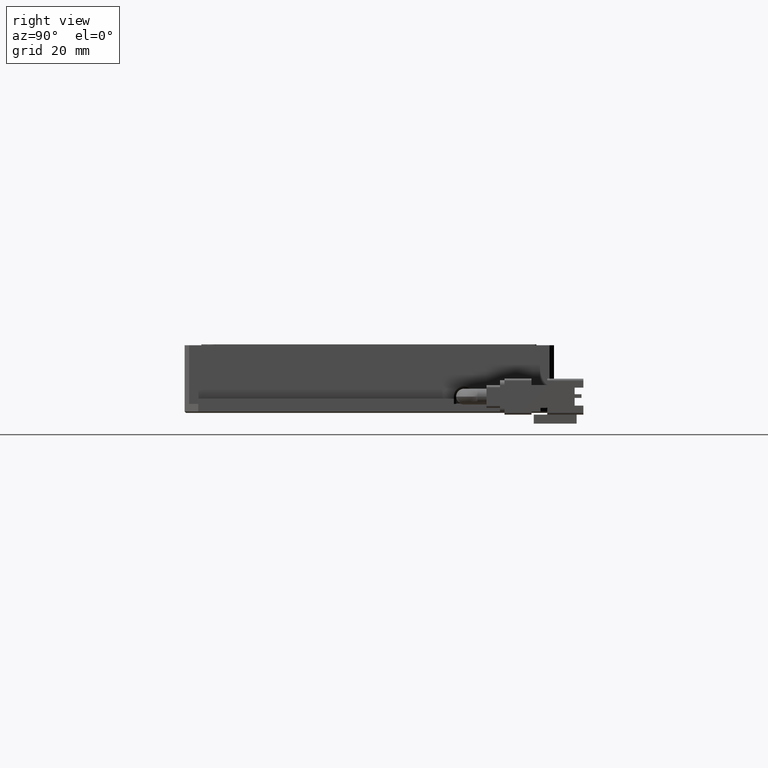
[diagram: clean part render]
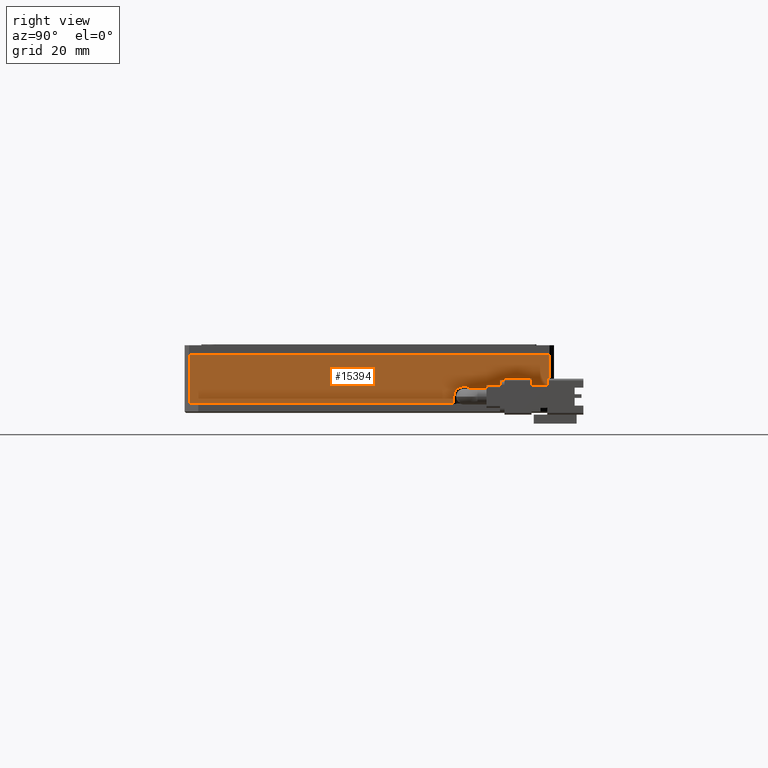
[diagram: same view with one face highlighted and labeled with its STEP entity id]
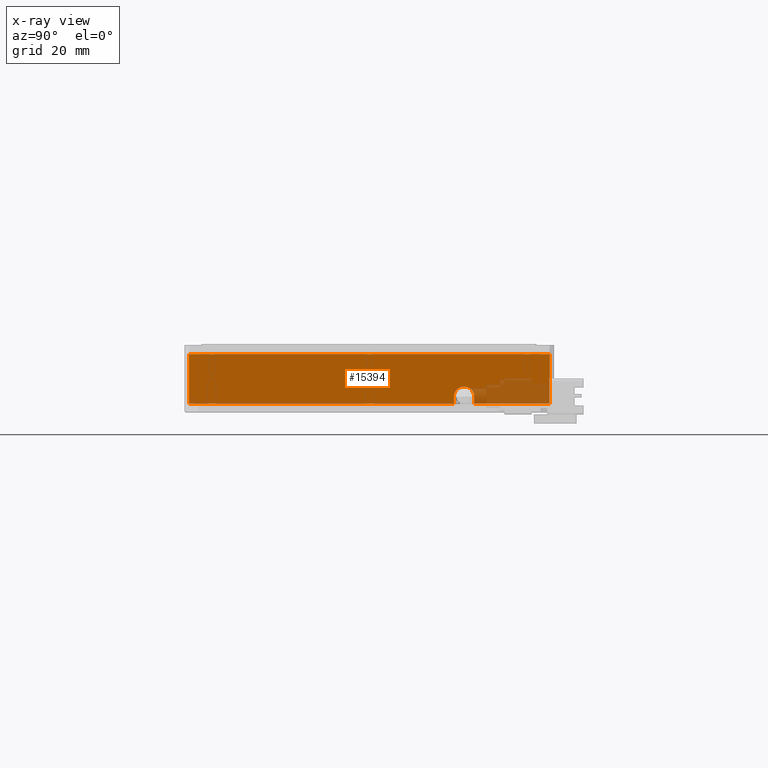
[diagram: x-ray of the same camera — body ghosted, the highlighted face saturated]
A machine part, right view. The second image highlights one B-rep face of the part: STEP entity #15394.
The next image is the same camera in x-ray: the body ghosted, the highlighted face saturated — about 9% of this face is hidden behind the body in this view.
In plain terms, the highlighted planar face has unit normal (-1, 0, 0).
Its self-contained STEP definition (entity closure, byte-faithful):
#471 = DIRECTION ( 'NONE',  ( 0.0000000000000000000, 0.0000000000000000000, 1.000000000000000000 ) ) ;
#705 = AXIS2_PLACEMENT_3D ( 'NONE', #10627, #2996, #11945 ) ;
#861 = EDGE_LOOP ( 'NONE', ( #11284, #11285, #2003, #9945, #1227, #5456, #15935, #7440 ) ) ;
#1227 = ORIENTED_EDGE ( 'NONE', *, *, #5959, .F. ) ;
#1407 = DIRECTION ( 'NONE',  ( -0.0000000000000000000, -1.000000000000000000, 0.0000000000000000000 ) ) ;
#1475 = DIRECTION ( 'NONE',  ( -0.0000000000000000000, -0.0000000000000000000, -1.000000000000000000 ) ) ;
#1745 = VECTOR ( 'NONE', #1475, 1000.000000000000000 ) ;
#1920 = CARTESIAN_POINT ( 'NONE',  ( 58.00152730050955100, 25.85299732722415900, 1.599999999995515000 ) ) ;
#1941 = LINE ( 'NONE', #9542, #5450 ) ;
#2003 = ORIENTED_EDGE ( 'NONE', *, *, #10074, .F. ) ;
#2516 = CIRCLE ( 'NONE', #12256, 2.250000000064210000 ) ;
#2996 = DIRECTION ( 'NONE',  ( -1.000000000000000000, 0.0000000000000000000, 0.0000000000000000000 ) ) ;
#3290 = DIRECTION ( 'NONE',  ( 0.0000000000000000000, 0.0000000000000000000, -1.000000000000000000 ) ) ;
#3488 = CARTESIAN_POINT ( 'NONE',  ( 58.00152730049637000, -35.14700267277584800, 10.99999999999551300 ) ) ;
#3548 = DIRECTION ( 'NONE',  ( 0.0000000000000000000, 0.0000000000000000000, 1.000000000000000000 ) ) ;
#3684 = CARTESIAN_POINT ( 'NONE',  ( 58.00152730049637000, 45.85299732722416600, 10.99999999999551300 ) ) ;
#4623 = CARTESIAN_POINT ( 'NONE',  ( 58.00152730049638400, 23.60299732722415200, -4.485127547138034700E-012 ) ) ;
#4702 = LINE ( 'NONE', #3684, #11441 ) ;
#5177 = CARTESIAN_POINT ( 'NONE',  ( 58.00152730049638400, 44.85299732722409500, 10.99999999999551600 ) ) ;
#5214 = VECTOR ( 'NONE', #1407, 1000.000000000000000 ) ;
#5261 = LINE ( 'NONE', #11781, #1745 ) ;
#5450 = VECTOR ( 'NONE', #471, 1000.000000000000000 ) ;
#5456 = ORIENTED_EDGE ( 'NONE', *, *, #10641, .F. ) ;
#5550 = PLANE ( 'NONE',  #705 ) ;
#5628 = LINE ( 'NONE', #7677, #8602 ) ;
#5959 = EDGE_CURVE ( 'NONE', #7856, #9538, #6129, .T. ) ;
#6129 = LINE ( 'NONE', #3488, #9508 ) ;
#6389 = CARTESIAN_POINT ( 'NONE',  ( 58.00152730049637000, -36.14700267277584100, -4.485127547138034700E-012 ) ) ;
#6465 = LINE ( 'NONE', #16302, #16259 ) ;
#7071 = EDGE_CURVE ( 'NONE', #9647, #8614, #2516, .T. ) ;
#7341 = DIRECTION ( 'NONE',  ( -0.0000000000000000000, -1.000000000000000000, 0.0000000000000000000 ) ) ;
#7440 = ORIENTED_EDGE ( 'NONE', *, *, #7071, .F. ) ;
#7677 = CARTESIAN_POINT ( 'NONE',  ( 58.00152730049637000, 44.85299732722409500, 10.99999999999551300 ) ) ;
#7856 = VERTEX_POINT ( 'NONE', #15322 ) ;
#8552 = VERTEX_POINT ( 'NONE', #16020 ) ;
#8575 = LINE ( 'NONE', #6389, #5214 ) ;
#8602 = VECTOR ( 'NONE', #8956, 1000.000000000000000 ) ;
#8614 = VERTEX_POINT ( 'NONE', #11016 ) ;
#8956 = DIRECTION ( 'NONE',  ( -0.0000000000000000000, -0.0000000000000000000, -1.000000000000000000 ) ) ;
#9034 = VERTEX_POINT ( 'NONE', #4623 ) ;
#9173 = FACE_OUTER_BOUND ( 'NONE', #861, .T. ) ;
#9185 = CARTESIAN_POINT ( 'NONE',  ( 58.00152730047782500, 28.10299732724406100, 1.599999999995520300 ) ) ;
#9190 = CARTESIAN_POINT ( 'NONE',  ( 58.00152730049638400, 44.85299732722409500, -4.485127547138034700E-012 ) ) ;
#9296 = VERTEX_POINT ( 'NONE', #5177 ) ;
#9381 = VERTEX_POINT ( 'NONE', #9190 ) ;
#9508 = VECTOR ( 'NONE', #3548, 1000.000000000000000 ) ;
#9538 = VERTEX_POINT ( 'NONE', #10738 ) ;
#9542 = CARTESIAN_POINT ( 'NONE',  ( 58.00152730049637000, 28.10299732722419100, 10.99999999999551300 ) ) ;
#9647 = VERTEX_POINT ( 'NONE', #9185 ) ;
#9945 = ORIENTED_EDGE ( 'NONE', *, *, #14614, .T. ) ;
#10002 = DIRECTION ( 'NONE',  ( -0.0000000000000000000, -1.000000000000000000, -0.0000000000000000000 ) ) ;
#10074 = EDGE_CURVE ( 'NONE', #9296, #9381, #5628, .T. ) ;
#10627 = CARTESIAN_POINT ( 'NONE',  ( 58.00152730049637000, -36.14700267277584100, 10.99999999999551300 ) ) ;
#10641 = EDGE_CURVE ( 'NONE', #9034, #7856, #8575, .T. ) ;
#10738 = CARTESIAN_POINT ( 'NONE',  ( 58.00152730049637000, -35.14700267277585500, 10.99999999999551300 ) ) ;
#10928 = DIRECTION ( 'NONE',  ( 1.000000000000000000, 0.0000000000000000000, 0.0000000000000000000 ) ) ;
#11016 = CARTESIAN_POINT ( 'NONE',  ( 58.00152730047782500, 23.60299732721016900, 1.599999999995496600 ) ) ;
#11284 = ORIENTED_EDGE ( 'NONE', *, *, #14964, .F. ) ;
#11285 = ORIENTED_EDGE ( 'NONE', *, *, #12710, .F. ) ;
#11441 = VECTOR ( 'NONE', #10002, 1000.000000000000000 ) ;
#11781 = CARTESIAN_POINT ( 'NONE',  ( 58.00152730049637000, 23.60299732722414500, 10.99999999999551300 ) ) ;
#11945 = DIRECTION ( 'NONE',  ( 0.0000000000000000000, 0.0000000000000000000, 1.000000000000000000 ) ) ;
#12256 = AXIS2_PLACEMENT_3D ( 'NONE', #1920, #10928, #3290 ) ;
#12710 = EDGE_CURVE ( 'NONE', #9381, #8552, #6465, .T. ) ;
#12929 = EDGE_CURVE ( 'NONE', #8614, #9034, #5261, .T. ) ;
#14614 = EDGE_CURVE ( 'NONE', #9296, #9538, #4702, .T. ) ;
#14964 = EDGE_CURVE ( 'NONE', #8552, #9647, #1941, .T. ) ;
#15322 = CARTESIAN_POINT ( 'NONE',  ( 58.00152730049637000, -35.14700267277585500, -4.485778068441526000E-012 ) ) ;
#15394 = ADVANCED_FACE ( 'NONE', ( #9173 ), #5550, .F. ) ;
#15935 = ORIENTED_EDGE ( 'NONE', *, *, #12929, .F. ) ;
#16020 = CARTESIAN_POINT ( 'NONE',  ( 58.00152730049638400, 28.10299732722419100, -4.485127547138034700E-012 ) ) ;
#16259 = VECTOR ( 'NONE', #7341, 1000.000000000000000 ) ;
#16302 = CARTESIAN_POINT ( 'NONE',  ( 58.00152730049637000, -36.14700267277584100, -4.485127547138034700E-012 ) ) ;